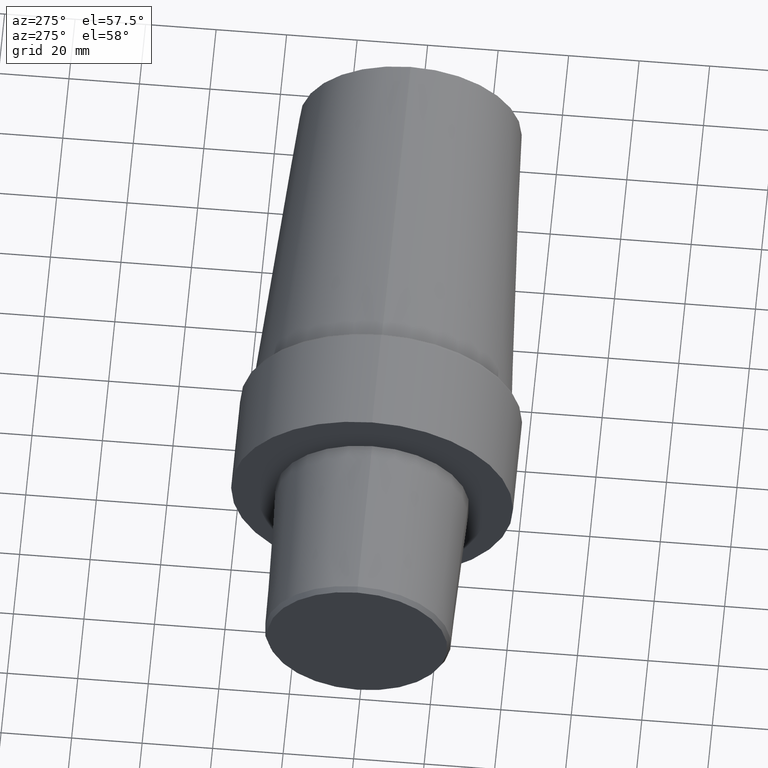
[diagram: clean part render]
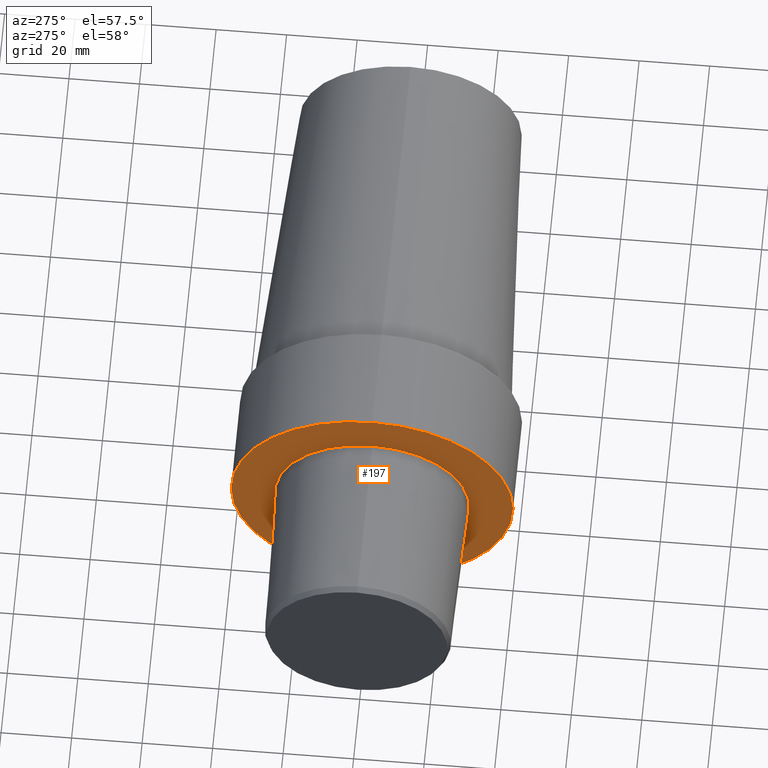
[diagram: same view with one face highlighted and labeled with its STEP entity id]
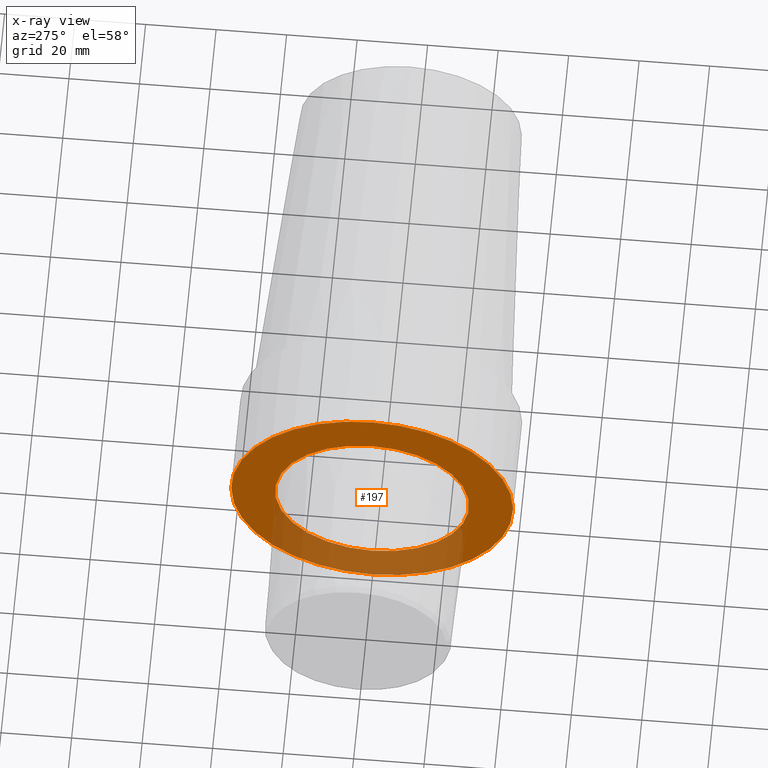
[diagram: x-ray of the same camera — body ghosted, the highlighted face saturated]
A machine part, auxiliary view. The second image highlights one B-rep face of the part: STEP entity #197.
The next image is the same camera in x-ray: the body ghosted, the highlighted face saturated — about 30% of this face is hidden behind the body in this view.
In plain terms, the highlighted planar face has unit normal (1, 0, 0).
Its self-contained STEP definition (entity closure, byte-faithful):
#1 = AXIS2_PLACEMENT_3D ( 'NONE', #322, #275, #401 ) ;
#10 = VERTEX_POINT ( 'NONE', #457 ) ;
#16 = ORIENTED_EDGE ( 'NONE', *, *, #303, .T. ) ;
#36 = DIRECTION ( 'NONE',  ( -1.000000000000000000, 0.000000000000000000, 0.000000000000000000 ) ) ;
#37 = DIRECTION ( 'NONE',  ( -1.000000000000000000, 0.000000000000000000, 0.000000000000000000 ) ) ;
#40 = EDGE_CURVE ( 'NONE', #370, #418, #227, .T. ) ;
#42 = CIRCLE ( 'NONE', #94, 27.52650806192296074 ) ;
#73 = CARTESIAN_POINT ( 'NONE',  ( 0.000000000000000000, 0.000000000000000000, 0.000000000000000000 ) ) ;
#77 = AXIS2_PLACEMENT_3D ( 'NONE', #241, #487, #108 ) ;
#78 = PLANE ( 'NONE',  #77 ) ;
#94 = AXIS2_PLACEMENT_3D ( 'NONE', #73, #36, #369 ) ;
#107 = CIRCLE ( 'NONE', #126, 27.52650806192296074 ) ;
#108 = DIRECTION ( 'NONE',  ( 0.000000000000000000, 1.000000000000000000, 0.000000000000000000 ) ) ;
#109 = DIRECTION ( 'NONE',  ( 0.000000000000000000, 0.000000000000000000, 1.000000000000000000 ) ) ;
#118 = AXIS2_PLACEMENT_3D ( 'NONE', #516, #351, #389 ) ;
#126 = AXIS2_PLACEMENT_3D ( 'NONE', #531, #37, #109 ) ;
#144 = EDGE_CURVE ( 'NONE', #536, #10, #42, .T. ) ;
#197 = ADVANCED_FACE ( 'NONE', ( #527, #284 ), #78, .F. ) ;
#227 = CIRCLE ( 'NONE', #1, 39.99249995920764889 ) ;
#241 = CARTESIAN_POINT ( 'NONE',  ( 0.000000000000000000, 39.99249995920764889, 0.000000000000000000 ) ) ;
#242 = EDGE_LOOP ( 'NONE', ( #16, #491 ) ) ;
#250 = CARTESIAN_POINT ( 'NONE',  ( 0.000000000000000000, 0.000000000000000000, 27.52650806192296074 ) ) ;
#253 = CIRCLE ( 'NONE', #118, 39.99249995920764889 ) ;
#275 = DIRECTION ( 'NONE',  ( -1.000000000000000000, 0.000000000000000000, 0.000000000000000000 ) ) ;
#284 = FACE_OUTER_BOUND ( 'NONE', #242, .T. ) ;
#303 = EDGE_CURVE ( 'NONE', #418, #370, #253, .T. ) ;
#306 = ORIENTED_EDGE ( 'NONE', *, *, #413, .F. ) ;
#322 = CARTESIAN_POINT ( 'NONE',  ( 0.000000000000000000, 0.000000000000000000, 0.000000000000000000 ) ) ;
#351 = DIRECTION ( 'NONE',  ( -1.000000000000000000, 0.000000000000000000, 0.000000000000000000 ) ) ;
#369 = DIRECTION ( 'NONE',  ( 0.000000000000000000, 0.000000000000000000, 1.000000000000000000 ) ) ;
#370 = VERTEX_POINT ( 'NONE', #371 ) ;
#371 = CARTESIAN_POINT ( 'NONE',  ( 0.000000000000000000, 4.897668706494433089E-15, -39.99249995920764889 ) ) ;
#389 = DIRECTION ( 'NONE',  ( 0.000000000000000000, 0.000000000000000000, 1.000000000000000000 ) ) ;
#401 = DIRECTION ( 'NONE',  ( 0.000000000000000000, 0.000000000000000000, 1.000000000000000000 ) ) ;
#413 = EDGE_CURVE ( 'NONE', #10, #536, #107, .T. ) ;
#416 = ORIENTED_EDGE ( 'NONE', *, *, #144, .F. ) ;
#418 = VERTEX_POINT ( 'NONE', #534 ) ;
#452 = EDGE_LOOP ( 'NONE', ( #416, #306 ) ) ;
#457 = CARTESIAN_POINT ( 'NONE',  ( 0.000000000000000000, 3.371024998973778328E-15, -27.52650806192296074 ) ) ;
#487 = DIRECTION ( 'NONE',  ( 1.000000000000000000, 0.000000000000000000, 0.000000000000000000 ) ) ;
#491 = ORIENTED_EDGE ( 'NONE', *, *, #40, .T. ) ;
#516 = CARTESIAN_POINT ( 'NONE',  ( 0.000000000000000000, 0.000000000000000000, 0.000000000000000000 ) ) ;
#527 = FACE_BOUND ( 'NONE', #452, .T. ) ;
#531 = CARTESIAN_POINT ( 'NONE',  ( 0.000000000000000000, 0.000000000000000000, 0.000000000000000000 ) ) ;
#534 = CARTESIAN_POINT ( 'NONE',  ( 0.000000000000000000, 0.000000000000000000, 39.99249995920764889 ) ) ;
#536 = VERTEX_POINT ( 'NONE', #250 ) ;